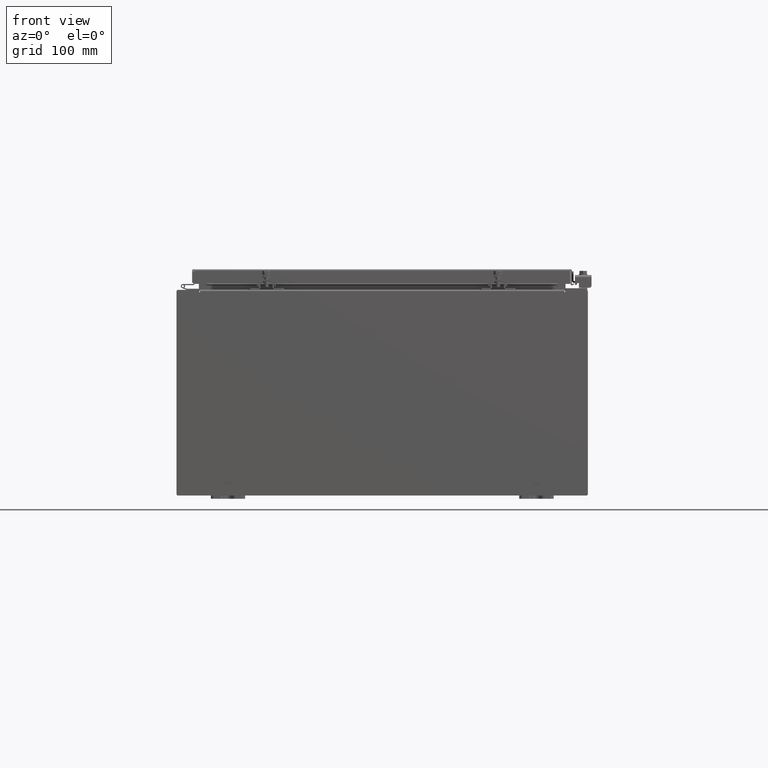
[diagram: clean part render]
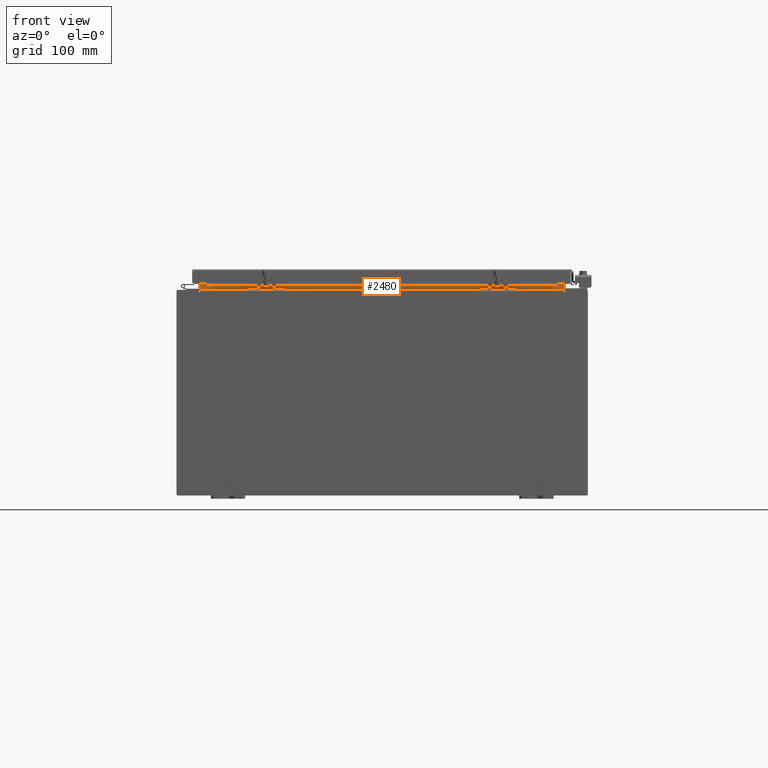
[diagram: same view with one face highlighted and labeled with its STEP entity id]
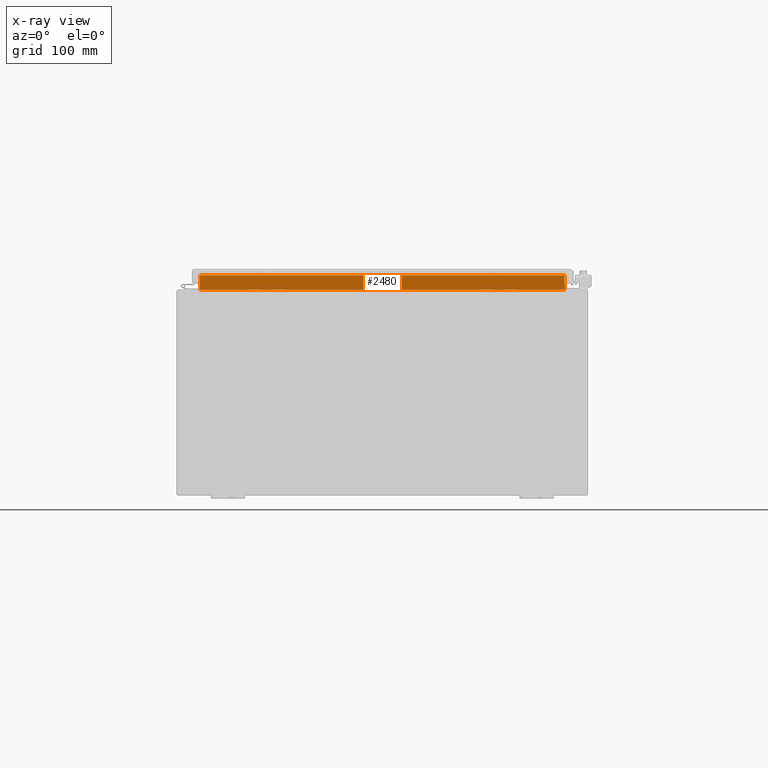
[diagram: x-ray of the same camera — body ghosted, the highlighted face saturated]
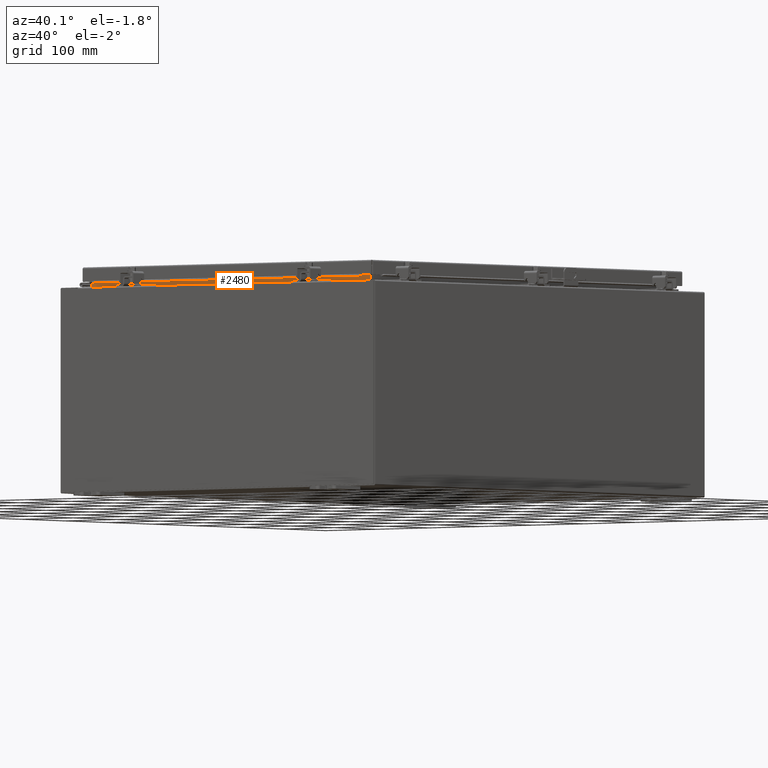
[diagram: same view with one face highlighted and labeled with its STEP entity id]
A machine part, front view. The second image highlights one B-rep face of the part: STEP entity #2480.
The next image is the same camera in x-ray: the body ghosted, the highlighted face saturated — about 0% of this face is hidden behind the body in this view.
A second angle (auxiliary view) of the same face is appended — the face is thin or edge-on in the first view.
In plain terms, the highlighted planar face has unit normal (0, -1, 0).
Its self-contained STEP definition (entity closure, byte-faithful):
#1804 = ORIENTED_EDGE ( 'NONE', *, *, #2861, .F. ) ;
#2289 = CARTESIAN_POINT ( 'NONE',  ( -10.63720000000000200, -1.300299999999999800, 6.013000000000003500 ) ) ;
#2307 = ORIENTED_EDGE ( 'NONE', *, *, #32937, .F. ) ;
#2480 = ADVANCED_FACE ( 'NONE', ( #23431 ), #30514, .T. ) ;
#2835 = DIRECTION ( 'NONE',  ( -0.0000000000000000000, -8.857174949738224200E-016, 1.000000000000000000 ) ) ;
#2861 = EDGE_CURVE ( 'NONE', #25279, #3250, #12634, .T. ) ;
#3154 = CARTESIAN_POINT ( 'NONE',  ( 10.63720000000000200, -1.300300000000000700, 6.925300000000007100 ) ) ;
#3250 = VERTEX_POINT ( 'NONE', #21507 ) ;
#3692 = ORIENTED_EDGE ( 'NONE', *, *, #34644, .F. ) ;
#4909 = CARTESIAN_POINT ( 'NONE',  ( 10.63720000000000400, -1.300299999999999800, 6.013000000000005200 ) ) ;
#5746 = LINE ( 'NONE', #12765, #12547 ) ;
#6064 = EDGE_CURVE ( 'NONE', #23686, #25171, #36252, .T. ) ;
#8433 = CARTESIAN_POINT ( 'NONE',  ( 1.183117784283575500E-031, -1.300299999999994700, -1.151698458714456500E-015 ) ) ;
#12060 = DIRECTION ( 'NONE',  ( -9.098806308417904000E-032, 1.000000000000000000, 8.857174949738224200E-016 ) ) ;
#12547 = VECTOR ( 'NONE', #15681, 39.37007874015748100 ) ;
#12634 = LINE ( 'NONE', #33835, #27000 ) ;
#12765 = CARTESIAN_POINT ( 'NONE',  ( 10.63719999999999600, -1.300300000000000900, 6.837600000000007200 ) ) ;
#14077 = DIRECTION ( 'NONE',  ( 0.0000000000000000000, -8.857174949738224200E-016, 1.000000000000000000 ) ) ;
#14802 = EDGE_LOOP ( 'NONE', ( #1804, #3692, #28503, #2307 ) ) ;
#15681 = DIRECTION ( 'NONE',  ( -1.000000000000000000, -0.0000000000000000000, -0.0000000000000000000 ) ) ;
#21507 = CARTESIAN_POINT ( 'NONE',  ( -10.63720000000000400, -1.300299999999999800, 6.013000000000005200 ) ) ;
#23431 = FACE_OUTER_BOUND ( 'NONE', #14802, .T. ) ;
#23686 = VERTEX_POINT ( 'NONE', #4909 ) ;
#25171 = VERTEX_POINT ( 'NONE', #35469 ) ;
#25279 = VERTEX_POINT ( 'NONE', #30146 ) ;
#25412 = DIRECTION ( 'NONE',  ( 1.000000000000000000, 1.027280861002618300E-016, 1.027280861002618300E-016 ) ) ;
#26584 = VECTOR ( 'NONE', #25412, 39.37007874015748100 ) ;
#27000 = VECTOR ( 'NONE', #32649, 39.37007874015748100 ) ;
#27473 = LINE ( 'NONE', #2289, #26584 ) ;
#28503 = ORIENTED_EDGE ( 'NONE', *, *, #6064, .F. ) ;
#28759 = AXIS2_PLACEMENT_3D ( 'NONE', #8433, #12060, #14077 ) ;
#29499 = VECTOR ( 'NONE', #2835, 39.37007874015748100 ) ;
#30146 = CARTESIAN_POINT ( 'NONE',  ( -10.63719999999998800, -1.300300000000000900, 6.837600000000007200 ) ) ;
#30514 = PLANE ( 'NONE',  #28759 ) ;
#32649 = DIRECTION ( 'NONE',  ( -0.0000000000000000000, 8.857174949738214300E-016, -1.000000000000000000 ) ) ;
#32937 = EDGE_CURVE ( 'NONE', #3250, #23686, #27473, .T. ) ;
#33835 = CARTESIAN_POINT ( 'NONE',  ( -10.63720000000000200, -1.300299999999999800, 6.000000000000003600 ) ) ;
#34644 = EDGE_CURVE ( 'NONE', #25171, #25279, #5746, .T. ) ;
#35469 = CARTESIAN_POINT ( 'NONE',  ( 10.63720000000000200, -1.300300000000000700, 6.837600000000007200 ) ) ;
#36252 = LINE ( 'NONE', #3154, #29499 ) ;